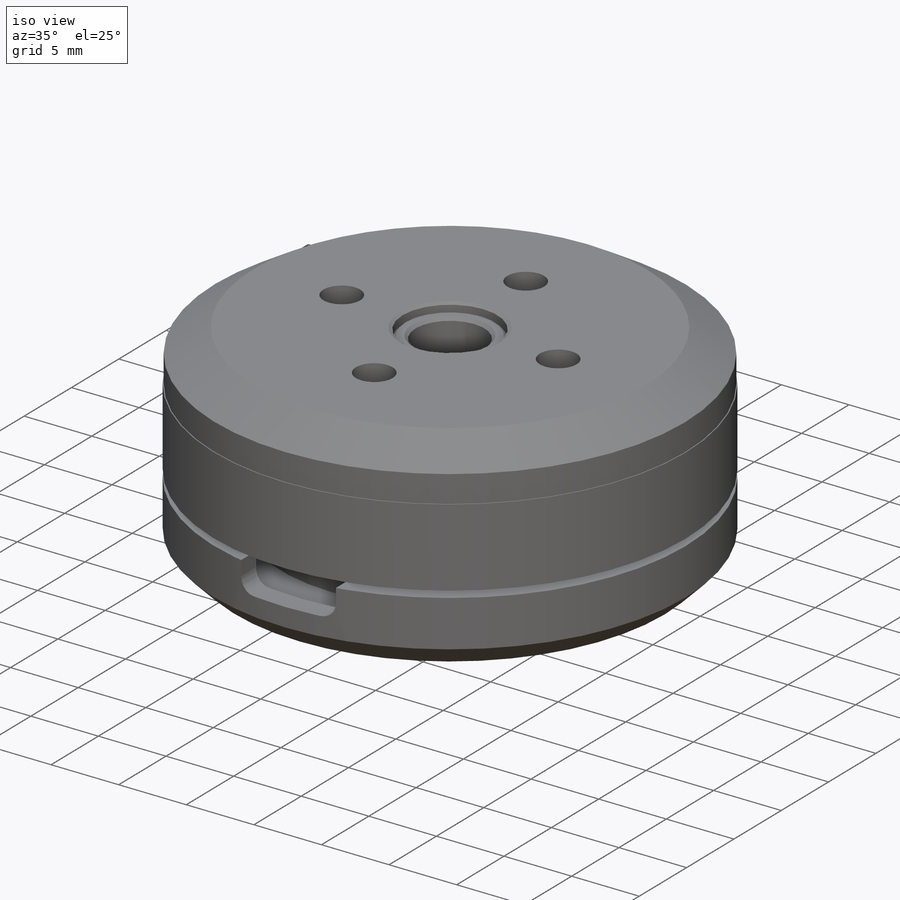
[diagram: iso view]
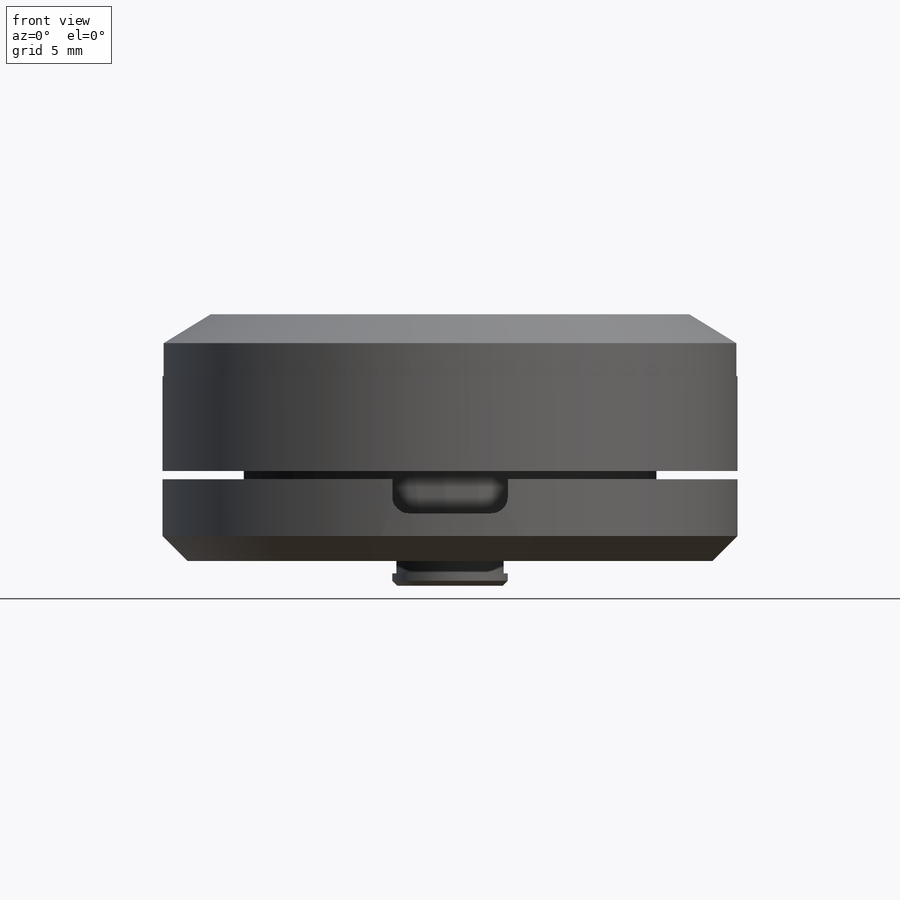
[diagram: front view]
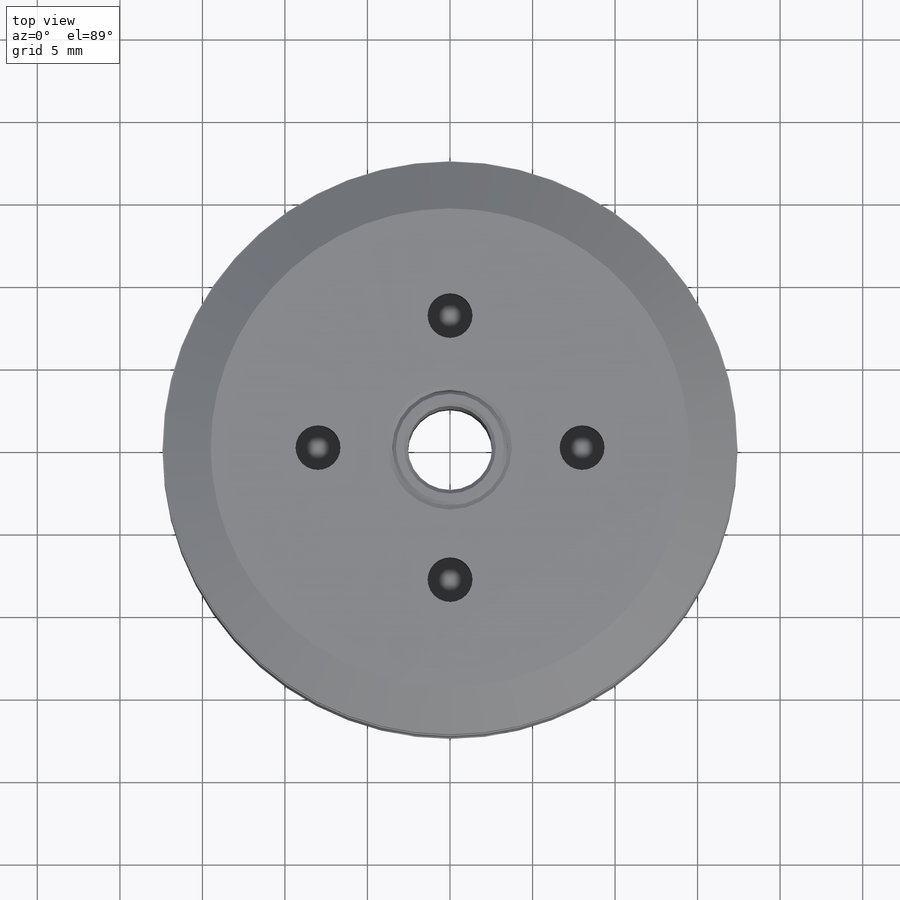
[diagram: top view]
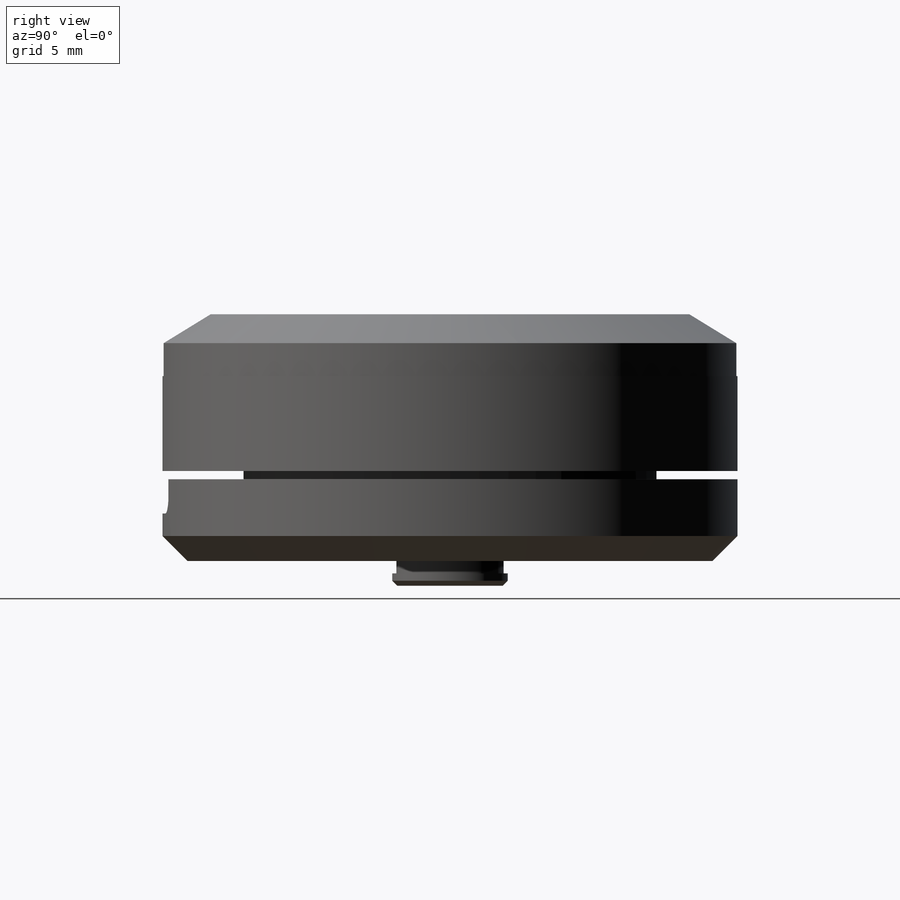
[diagram: right view]
SOLIDWORKS PART (.sldprt)
format: sldprt  version: not decoded by parser v0  size: 337,408 bytes
history: native  units: mm
features: sketch x5, cut_extrude x3, material x1, revolve x1, cut_revolve x1, fillet x1 (+12 scaffold rows collapsed)
feature tree (24):
  scaffold x12  (default folders/planes/origin — collapsed)
  material  "Material <not specified>"
  sketch  "Sketch1"  dims[c1.D1=5.1mm c1.D2=7.0mm c1.D3=0.5mm c1.D4=0.5mm c2.D4=45.0deg c2.D5=7.5mm c2.D6=~0.448205mm c3.D6=145.0deg c4.D6=~0.175052mm c5.D6=30.0deg c5.D7=29.0mm c5.D8=34.7mm c5.D9=34.83mm c5.D10=31.8mm c5.D11=6.5mm c5.D12=0.75mm c5.D13=~0.467311mm c6.D13=45.0deg c6.D14=1.5mm c6.D15=0.65mm c6.D16=0.55mm c6.D17=1.75mm c6.D18=3.75mm c6.D19=14.95mm c6.D20=4.95mm c6.D21=2.0mm c6.D22=1.0mm c6.D23=0.5mm c6.D24=25.0mm c6.D25=2.0mm]
  revolve  "Revolve1"  Angle=360deg
  sketch  "Sketch3"  dims[c1.D1=11.0mm c1.D2=6.5mm c1.D3=0.005mm c1.D4=0.05mm c1.D5=0.045mm c2.D5=45.0deg c2.D6=0.5mm c2.D7=0.5mm c2.D8=0.06mm]
  cut_revolve  "Cut-Revolve1"  Angle=360deg
  sketch  "Sketch4"  dims[c1.D1=~2.575856mm c1.D2=2.72mm c2.D1=8.0mm c2.D3=4.0]
  cut_extrude  "Cut-Extrude1"  Depth=4mm
  sketch  "Sketch5"  dims[c1.D3=19.0mm c1.D4=2.72mm c1.D1=8.0mm c1.D2=19.0mm c2.D3=9.5mm c3.D3=45.0deg]
  cut_extrude  "Cut-Extrude2"  Depth=4mm
  sketch  "Sketch6"  dims[c1.D1=0.0mm c1.D2=~9.980375mm c2.D1=~2.290578mm c2.D2=~5.726444mm c3.D1=12.5mm]
  cut_extrude  "Cut-Extrude3"  Depth=7mm
  fillet  "Fillet1"  Radius=1mm
decode coverage: 11 of 11 modeling features carry decoded parameters
note: ~ marks probable driven/reference dimensions
note: suppression state not decoded; provenance and decode notes live in map.json
